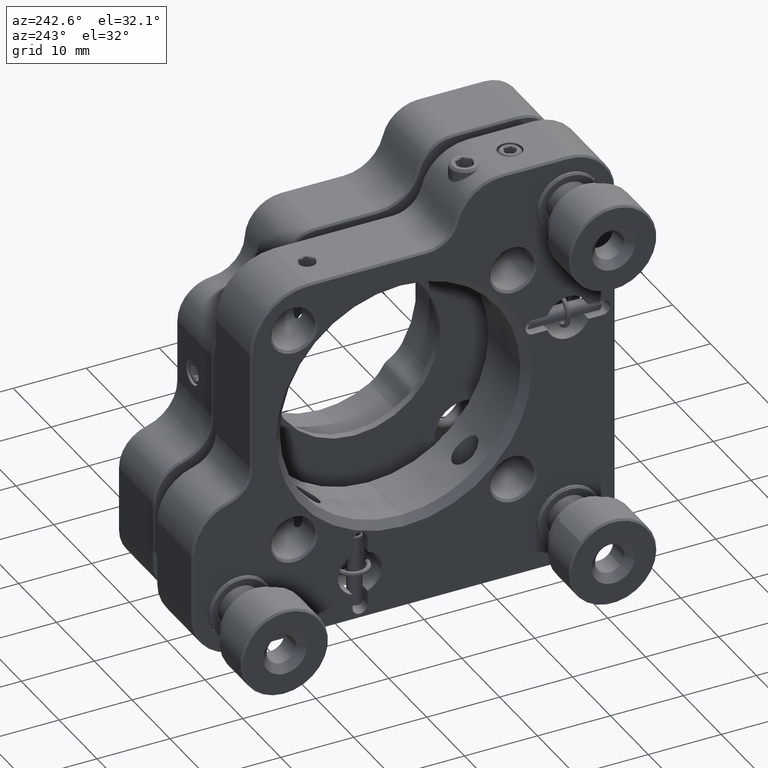
[diagram: clean part render]
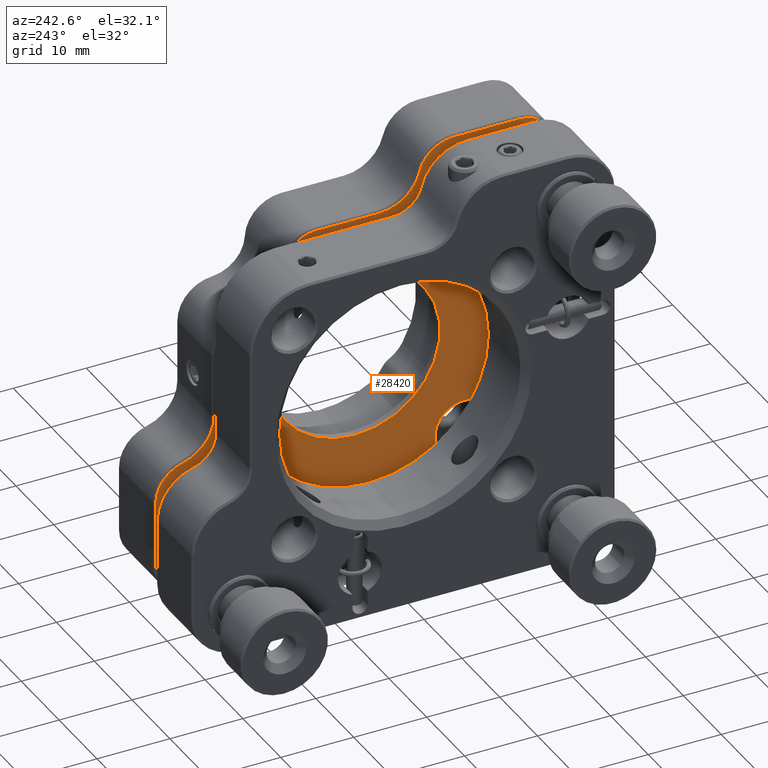
[diagram: same view with one face highlighted and labeled with its STEP entity id]
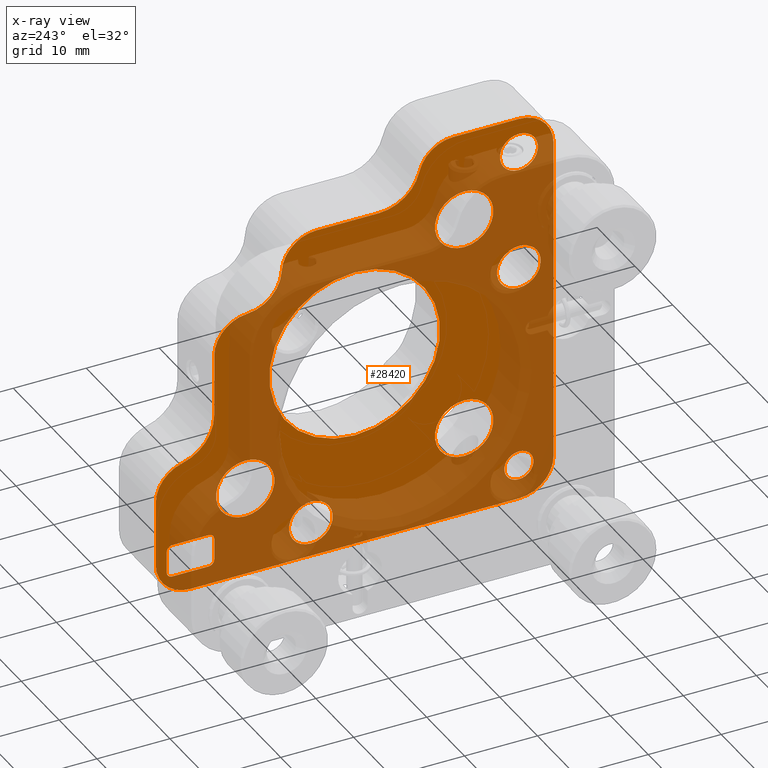
[diagram: x-ray of the same camera — body ghosted, the highlighted face saturated]
A machine part, auxiliary view. The second image highlights one B-rep face of the part: STEP entity #28420.
The next image is the same camera in x-ray: the body ghosted, the highlighted face saturated — about 65% of this face is hidden behind the body in this view.
In plain terms, the highlighted planar face has unit normal (1, 0, 0).
Its self-contained STEP definition (entity closure, byte-faithful):
#60 = VECTOR ( 'NONE', #24103, 1000.000000000000000 ) ;
#331 = EDGE_CURVE ( 'NONE', #20608, #10147, #13475, .T. ) ;
#518 = CARTESIAN_POINT ( 'NONE',  ( -5.080910080472725632, -8.231932511759531224, 74.25000000000001421 ) ) ;
#589 = CARTESIAN_POINT ( 'NONE',  ( -5.080910080472725632, 16.76806748824047233, 51.69803902718557254 ) ) ;
#610 = EDGE_LOOP ( 'NONE', ( #22823, #29587, #20907, #33398, #13126, #10303, #18364, #13042, #26037, #22110, #30973, #29149, #34656, #32153, #36007, #6793 ) ) ;
#685 = DIRECTION ( 'NONE',  ( 0.000000000000000000, 0.000000000000000000, -1.000000000000000000 ) ) ;
#745 = DIRECTION ( 'NONE',  ( 0.000000000000000000, 0.000000000000000000, -1.000000000000000000 ) ) ;
#832 = CIRCLE ( 'NONE', #24382, 2.600000000000004974 ) ;
#1018 = CIRCLE ( 'NONE', #17140, 11.70000000000000284 ) ;
#1032 = VERTEX_POINT ( 'NONE', #32410 ) ;
#1128 = CARTESIAN_POINT ( 'NONE',  ( -5.080910080472725632, 6.768067488240470553, 44.00000000000000711 ) ) ;
#1412 = CARTESIAN_POINT ( 'NONE',  ( -5.080910080472725632, -30.73193251175952767, 74.90000000000000568 ) ) ;
#1494 = LINE ( 'NONE', #2255, #5043 ) ;
#1576 = EDGE_CURVE ( 'NONE', #25722, #5342, #23011, .T. ) ;
#1590 = CIRCLE ( 'NONE', #20149, 4.000000000000003553 ) ;
#1787 = ORIENTED_EDGE ( 'NONE', *, *, #15888, .F. ) ;
#1942 = AXIS2_PLACEMENT_3D ( 'NONE', #32045, #6694, #17988 ) ;
#1951 = AXIS2_PLACEMENT_3D ( 'NONE', #589, #20306, #23154 ) ;
#2074 = VERTEX_POINT ( 'NONE', #12947 ) ;
#2255 = CARTESIAN_POINT ( 'NONE',  ( -5.080910080472725632, -35.48193251175952412, 55.00000000000000711 ) ) ;
#2335 = VERTEX_POINT ( 'NONE', #4575 ) ;
#2491 = ORIENTED_EDGE ( 'NONE', *, *, #1576, .F. ) ;
#2528 = ORIENTED_EDGE ( 'NONE', *, *, #10376, .F. ) ;
#2671 = DIRECTION ( 'NONE',  ( 0.000000000000000000, 0.000000000000000000, -1.000000000000000000 ) ) ;
#2788 = EDGE_CURVE ( 'NONE', #6411, #2074, #21312, .T. ) ;
#2823 = CIRCLE ( 'NONE', #29100, 3.999999999999996447 ) ;
#2888 = AXIS2_PLACEMENT_3D ( 'NONE', #18502, #29464, #32336 ) ;
#2929 = VERTEX_POINT ( 'NONE', #8926 ) ;
#3047 = ORIENTED_EDGE ( 'NONE', *, *, #11907, .F. ) ;
#3092 = CIRCLE ( 'NONE', #8991, 4.749999999999997335 ) ;
#3109 = CIRCLE ( 'NONE', #19122, 3.000000000000002665 ) ;
#3136 = CARTESIAN_POINT ( 'NONE',  ( -5.080910080472725632, 16.74306748824046309, 30.25000000000001066 ) ) ;
#3226 = ORIENTED_EDGE ( 'NONE', *, *, #8254, .F. ) ;
#3410 = CIRCLE ( 'NONE', #1951, 5.749999999999998224 ) ;
#3482 = DIRECTION ( 'NONE',  ( 0.000000000000000000, 0.000000000000000000, -1.000000000000000000 ) ) ;
#3590 = EDGE_CURVE ( 'NONE', #25209, #3851, #28388, .T. ) ;
#3604 = EDGE_CURVE ( 'NONE', #2335, #9929, #35483, .T. ) ;
#3653 = VERTEX_POINT ( 'NONE', #13613 ) ;
#3851 = VERTEX_POINT ( 'NONE', #13987 ) ;
#3964 = CARTESIAN_POINT ( 'NONE',  ( -5.080910080472725632, 17.51806748824046167, 30.25000000000001066 ) ) ;
#4036 = EDGE_CURVE ( 'NONE', #21357, #34257, #1494, .T. ) ;
#4270 = VERTEX_POINT ( 'NONE', #1128 ) ;
#4431 = CIRCLE ( 'NONE', #32702, 2.600000000000004974 ) ;
#4487 = EDGE_CURVE ( 'NONE', #10425, #6411, #13427, .T. ) ;
#4575 = CARTESIAN_POINT ( 'NONE',  ( -5.080910080472725632, 11.79306748824046380, 34.75000000000000711 ) ) ;
#4683 = CARTESIAN_POINT ( 'NONE',  ( -5.080910080472725632, 15.39901986919285903, 46.11339860753633246 ) ) ;
#4759 = LINE ( 'NONE', #518, #17906 ) ;
#4774 = AXIS2_PLACEMENT_3D ( 'NONE', #35640, #12635, #7096 ) ;
#4971 = CARTESIAN_POINT ( 'NONE',  ( -5.080910080472725632, 11.79306748824046380, 31.02500000000000924 ) ) ;
#4998 = EDGE_CURVE ( 'NONE', #19390, #8589, #10311, .T. ) ;
#5007 = EDGE_LOOP ( 'NONE', ( #33493, #2528 ) ) ;
#5022 = DIRECTION ( 'NONE',  ( 0.000000000000000000, 0.000000000000000000, 1.000000000000000000 ) ) ;
#5043 = VECTOR ( 'NONE', #28141, 1000.000000000000000 ) ;
#5050 = DIRECTION ( 'NONE',  ( 0.000000000000000000, 0.000000000000000000, -1.000000000000000000 ) ) ;
#5095 = CARTESIAN_POINT ( 'NONE',  ( -5.080910080472725632, -21.73193251175952767, 77.50000000000001421 ) ) ;
#5253 = ORIENTED_EDGE ( 'NONE', *, *, #14069, .T. ) ;
#5342 = VERTEX_POINT ( 'NONE', #25851 ) ;
#5654 = DIRECTION ( 'NONE',  ( -1.000000000000000000, 0.000000000000000000, 0.000000000000000000 ) ) ;
#5759 = VERTEX_POINT ( 'NONE', #7195 ) ;
#6067 = VERTEX_POINT ( 'NONE', #13051 ) ;
#6076 = VERTEX_POINT ( 'NONE', #32742 ) ;
#6266 = CARTESIAN_POINT ( 'NONE',  ( -5.080910080472725632, 6.768067488240469665, 70.00000000000000000 ) ) ;
#6411 = VERTEX_POINT ( 'NONE', #21789 ) ;
#6515 = DIRECTION ( 'NONE',  ( 0.000000000000000000, 0.000000000000000000, 1.000000000000000000 ) ) ;
#6612 = EDGE_LOOP ( 'NONE', ( #24501, #36402 ) ) ;
#6637 = EDGE_CURVE ( 'NONE', #35864, #10425, #4759, .T. ) ;
#6694 = DIRECTION ( 'NONE',  ( -1.000000000000000000, -0.000000000000000000, -0.000000000000000000 ) ) ;
#6793 = ORIENTED_EDGE ( 'NONE', *, *, #13152, .T. ) ;
#6925 = CARTESIAN_POINT ( 'NONE',  ( -5.080910080472725632, 17.51806748824046167, 30.25000000000001066 ) ) ;
#6994 = DIRECTION ( 'NONE',  ( 0.000000000000000000, 0.000000000000000000, -1.000000000000000000 ) ) ;
#7080 = DIRECTION ( 'NONE',  ( -1.000000000000000000, 0.000000000000000000, 0.000000000000000000 ) ) ;
#7096 = DIRECTION ( 'NONE',  ( 0.000000000000000000, 0.000000000000000000, -1.000000000000000000 ) ) ;
#7195 = CARTESIAN_POINT ( 'NONE',  ( -5.080910080472725632, 11.79306748824046380, 30.25000000000001066 ) ) ;
#7634 = EDGE_CURVE ( 'NONE', #2074, #14821, #3092, .T. ) ;
#7806 = FACE_BOUND ( 'NONE', #25975, .T. ) ;
#7837 = FACE_BOUND ( 'NONE', #10909, .T. ) ;
#7854 = AXIS2_PLACEMENT_3D ( 'NONE', #4971, #21504, #33252 ) ;
#7884 = DIRECTION ( 'NONE',  ( 0.000000000000000000, 0.000000000000000000, -1.000000000000000000 ) ) ;
#8006 = EDGE_LOOP ( 'NONE', ( #35236, #12321 ) ) ;
#8183 = VERTEX_POINT ( 'NONE', #14951 ) ;
#8254 = EDGE_CURVE ( 'NONE', #2335, #8589, #14688, .T. ) ;
#8277 = EDGE_CURVE ( 'NONE', #26258, #35864, #13810, .T. ) ;
#8338 = ORIENTED_EDGE ( 'NONE', *, *, #26434, .T. ) ;
#8589 = VERTEX_POINT ( 'NONE', #12543 ) ;
#8657 = LINE ( 'NONE', #17642, #35058 ) ;
#8730 = CARTESIAN_POINT ( 'NONE',  ( -5.080910080472725632, -23.23193251175952767, 40.00000000000000711 ) ) ;
#8926 = CARTESIAN_POINT ( 'NONE',  ( -5.080910080472722967, -8.231932511759527671, 66.70000000000000284 ) ) ;
#8932 = DIRECTION ( 'NONE',  ( 0.000000000000000000, -1.000000000000000000, -6.308085367188388762E-17 ) ) ;
#8987 = DIRECTION ( 'NONE',  ( 0.000000000000000000, 0.000000000000000000, 1.000000000000000000 ) ) ;
#8991 = AXIS2_PLACEMENT_3D ( 'NONE', #14730, #34666, #745 ) ;
#9068 = DIRECTION ( 'NONE',  ( 0.000000000000000000, 0.000000000000000000, 1.000000000000000000 ) ) ;
#9192 = EDGE_CURVE ( 'NONE', #3851, #25209, #3109, .T. ) ;
#9406 = EDGE_CURVE ( 'NONE', #2929, #9583, #35624, .T. ) ;
#9477 = DIRECTION ( 'NONE',  ( 1.000000000000000000, 0.000000000000000000, 0.000000000000000000 ) ) ;
#9522 = VECTOR ( 'NONE', #17442, 1000.000000000000000 ) ;
#9583 = VERTEX_POINT ( 'NONE', #30415 ) ;
#9698 = LINE ( 'NONE', #6925, #60 ) ;
#9699 = EDGE_LOOP ( 'NONE', ( #31508, #8338 ) ) ;
#9714 = AXIS2_PLACEMENT_3D ( 'NONE', #34470, #24087, #18317 ) ;
#9743 = DIRECTION ( 'NONE',  ( 0.000000000000000000, -1.239088197126290817E-16, -1.000000000000000000 ) ) ;
#9831 = EDGE_CURVE ( 'NONE', #8183, #21357, #14029, .T. ) ;
#9929 = VERTEX_POINT ( 'NONE', #29017 ) ;
#10022 = AXIS2_PLACEMENT_3D ( 'NONE', #12313, #23611, #685 ) ;
#10138 = EDGE_CURVE ( 'NONE', #34257, #6067, #16624, .T. ) ;
#10147 = VERTEX_POINT ( 'NONE', #22437 ) ;
#10280 = CARTESIAN_POINT ( 'NONE',  ( -5.080910080472725632, 6.768067488240469665, 36.00000000000001421 ) ) ;
#10303 = ORIENTED_EDGE ( 'NONE', *, *, #7634, .T. ) ;
#10311 = CIRCLE ( 'NONE', #22436, 0.7749999999999979128 ) ;
#10376 = EDGE_CURVE ( 'NONE', #23721, #13458, #832, .T. ) ;
#10425 = VERTEX_POINT ( 'NONE', #19622 ) ;
#10474 = AXIS2_PLACEMENT_3D ( 'NONE', #16646, #27830, #33542 ) ;
#10498 = CARTESIAN_POINT ( 'NONE',  ( -5.080910080472725632, 19.01806748824047588, 32.50000000000000711 ) ) ;
#10703 = LINE ( 'NONE', #30894, #34487 ) ;
#10727 = EDGE_CURVE ( 'NONE', #16980, #14307, #22763, .T. ) ;
#10909 = EDGE_LOOP ( 'NONE', ( #25054, #2491 ) ) ;
#11037 = DIRECTION ( 'NONE',  ( 0.000000000000000000, 0.000000000000000000, -1.000000000000000000 ) ) ;
#11093 = EDGE_CURVE ( 'NONE', #18815, #20608, #3410, .T. ) ;
#11145 = AXIS2_PLACEMENT_3D ( 'NONE', #21405, #24223, #18219 ) ;
#11218 = AXIS2_PLACEMENT_3D ( 'NONE', #5095, #35815, #7884 ) ;
#11385 = FACE_OUTER_BOUND ( 'NONE', #610, .T. ) ;
#11406 = CARTESIAN_POINT ( 'NONE',  ( -5.080910080472725632, -2.229558574121890846, 32.50000000000001421 ) ) ;
#11513 = CARTESIAN_POINT ( 'NONE',  ( -5.080910080472725632, 19.01806748824047588, 55.00000000000000711 ) ) ;
#11907 = EDGE_CURVE ( 'NONE', #13233, #5759, #14315, .T. ) ;
#12009 = EDGE_CURVE ( 'NONE', #6076, #9929, #19584, .T. ) ;
#12035 = VECTOR ( 'NONE', #12948, 1000.000000000000000 ) ;
#12257 = CARTESIAN_POINT ( 'NONE',  ( -5.080910080472725632, -23.23193251175952767, 70.00000000000000000 ) ) ;
#12313 = CARTESIAN_POINT ( 'NONE',  ( -5.080910080472725632, -30.73193251175952767, 32.50000000000000711 ) ) ;
#12321 = ORIENTED_EDGE ( 'NONE', *, *, #13702, .T. ) ;
#12341 = CIRCLE ( 'NONE', #24884, 3.999999999999996447 ) ;
#12442 = VERTEX_POINT ( 'NONE', #22929 ) ;
#12543 = CARTESIAN_POINT ( 'NONE',  ( -5.080910080472725632, 16.74306748824046309, 34.75000000000000711 ) ) ;
#12614 = DIRECTION ( 'NONE',  ( 1.000000000000000000, 0.000000000000000000, -0.000000000000000000 ) ) ;
#12635 = DIRECTION ( 'NONE',  ( 1.000000000000000000, 0.000000000000000000, 0.000000000000000000 ) ) ;
#12947 = CARTESIAN_POINT ( 'NONE',  ( -5.080910080472725632, 6.511657231830218606, 65.00657895021784327 ) ) ;
#12948 = DIRECTION ( 'NONE',  ( -0.000000000000000000, 1.000000000000000000, -0.000000000000000000 ) ) ;
#12954 = DIRECTION ( 'NONE',  ( -1.000000000000000000, -0.000000000000000000, -0.000000000000000000 ) ) ;
#13009 = VECTOR ( 'NONE', #24153, 1000.000000000000000 ) ;
#13023 = AXIS2_PLACEMENT_3D ( 'NONE', #13586, #14066, #2671 ) ;
#13042 = ORIENTED_EDGE ( 'NONE', *, *, #11093, .T. ) ;
#13051 = CARTESIAN_POINT ( 'NONE',  ( -5.080910080472725632, -30.73193251175952767, 82.25000000000000000 ) ) ;
#13126 = ORIENTED_EDGE ( 'NONE', *, *, #2788, .T. ) ;
#13152 = EDGE_CURVE ( 'NONE', #6067, #12442, #10703, .T. ) ;
#13233 = VERTEX_POINT ( 'NONE', #3136 ) ;
#13274 = EDGE_CURVE ( 'NONE', #1032, #30165, #15099, .T. ) ;
#13318 = CIRCLE ( 'NONE', #7854, 0.7750000000000013545 ) ;
#13333 = DIRECTION ( 'NONE',  ( 0.000000000000000000, 0.000000000000000000, -1.000000000000000000 ) ) ;
#13382 = CIRCLE ( 'NONE', #1942, 4.750000000000000888 ) ;
#13427 = CIRCLE ( 'NONE', #34002, 4.750000000000004441 ) ;
#13458 = VERTEX_POINT ( 'NONE', #27417 ) ;
#13475 = CIRCLE ( 'NONE', #28510, 4.750000000000004441 ) ;
#13482 = DIRECTION ( 'NONE',  ( 0.000000000000000000, 0.000000000000000000, -1.000000000000000000 ) ) ;
#13586 = CARTESIAN_POINT ( 'NONE',  ( -5.080910080472725632, -23.23193251175952767, 40.00000000000000711 ) ) ;
#13613 = CARTESIAN_POINT ( 'NONE',  ( -5.080910080472725632, -23.23193251175952767, 36.00000000000001421 ) ) ;
#13657 = DIRECTION ( 'NONE',  ( 0.000000000000000000, 0.000000000000000000, -1.000000000000000000 ) ) ;
#13702 = EDGE_CURVE ( 'NONE', #4270, #25460, #2823, .T. ) ;
#13810 = CIRCLE ( 'NONE', #11145, 5.749999999999991118 ) ;
#13987 = CARTESIAN_POINT ( 'NONE',  ( -5.080910080472725632, -2.229558574121890846, 35.50000000000001421 ) ) ;
#14012 = DIRECTION ( 'NONE',  ( -1.000000000000000000, 0.000000000000000000, 0.000000000000000000 ) ) ;
#14029 = CIRCLE ( 'NONE', #10022, 4.750000000000000888 ) ;
#14053 = CARTESIAN_POINT ( 'NONE',  ( -5.080910080472725632, -30.73193251175952057, 58.00237393763764260 ) ) ;
#14060 = DIRECTION ( 'NONE',  ( 0.000000000000000000, 1.000000000000000000, 6.308085367188388762E-17 ) ) ;
#14066 = DIRECTION ( 'NONE',  ( 1.000000000000000000, 0.000000000000000000, 0.000000000000000000 ) ) ;
#14069 = EDGE_CURVE ( 'NONE', #14307, #16980, #1590, .T. ) ;
#14177 = EDGE_CURVE ( 'NONE', #21762, #8183, #8657, .T. ) ;
#14307 = VERTEX_POINT ( 'NONE', #30465 ) ;
#14315 = LINE ( 'NONE', #3964, #9522 ) ;
#14501 = DIRECTION ( 'NONE',  ( 0.000000000000000000, 0.000000000000000000, -1.000000000000000000 ) ) ;
#14589 = CARTESIAN_POINT ( 'NONE',  ( -5.080910080472725632, -23.23193251175952767, 70.00000000000000000 ) ) ;
#14688 = LINE ( 'NONE', #18564, #12035 ) ;
#14730 = CARTESIAN_POINT ( 'NONE',  ( -5.080910080472725632, 6.268067488240477658, 60.26282895292478514 ) ) ;
#14821 = VERTEX_POINT ( 'NONE', #29940 ) ;
#14951 = CARTESIAN_POINT ( 'NONE',  ( -5.080910080472725632, -30.73193251175952767, 27.75000000000000711 ) ) ;
#14969 = CIRCLE ( 'NONE', #33951, 0.7750000000000013545 ) ;
#14986 = ORIENTED_EDGE ( 'NONE', *, *, #13274, .F. ) ;
#15099 = CIRCLE ( 'NONE', #9714, 2.000000000000001776 ) ;
#15261 = CARTESIAN_POINT ( 'NONE',  ( -5.080910080472725632, 11.01806748824047766, 55.00000000000000711 ) ) ;
#15299 = FACE_BOUND ( 'NONE', #5007, .T. ) ;
#15461 = CARTESIAN_POINT ( 'NONE',  ( -5.080910080472725632, -35.48193251175952412, 32.50000000000000000 ) ) ;
#15500 = DIRECTION ( 'NONE',  ( 1.000000000000000000, 0.000000000000000000, 0.000000000000000000 ) ) ;
#15565 = EDGE_CURVE ( 'NONE', #9583, #2929, #1018, .T. ) ;
#15762 = FACE_BOUND ( 'NONE', #27829, .T. ) ;
#15830 = DIRECTION ( 'NONE',  ( 0.000000000000000000, 0.000000000000000000, 1.000000000000000000 ) ) ;
#15888 = EDGE_CURVE ( 'NONE', #30165, #1032, #23784, .T. ) ;
#16064 = EDGE_CURVE ( 'NONE', #25460, #4270, #28172, .T. ) ;
#16237 = CARTESIAN_POINT ( 'NONE',  ( -5.080910080472722967, -8.231932511759529447, 55.00000000000000711 ) ) ;
#16343 = EDGE_CURVE ( 'NONE', #13233, #35670, #14969, .T. ) ;
#16350 = AXIS2_PLACEMENT_3D ( 'NONE', #24352, #12954, #13333 ) ;
#16363 = DIRECTION ( 'NONE',  ( -1.000000000000000000, -0.000000000000000000, -0.000000000000000000 ) ) ;
#16517 = CARTESIAN_POINT ( 'NONE',  ( -5.080910080472725632, -35.48193251175952412, 77.50000000000001421 ) ) ;
#16624 = CIRCLE ( 'NONE', #36397, 4.750000000000004441 ) ;
#16646 = CARTESIAN_POINT ( 'NONE',  ( -5.080910080472725632, -30.73193251175952057, 61.00237393763764970 ) ) ;
#16980 = VERTEX_POINT ( 'NONE', #27012 ) ;
#17074 = CARTESIAN_POINT ( 'NONE',  ( -5.080910080472725632, 6.768067488240469665, 40.00000000000000711 ) ) ;
#17140 = AXIS2_PLACEMENT_3D ( 'NONE', #16237, #16363, #13657 ) ;
#17295 = CARTESIAN_POINT ( 'NONE',  ( -5.080910080472725632, 14.26806748824047588, 41.50000000000000711 ) ) ;
#17442 = DIRECTION ( 'NONE',  ( 0.000000000000000000, -1.000000000000000000, 0.000000000000000000 ) ) ;
#17642 = CARTESIAN_POINT ( 'NONE',  ( -5.080910080472725632, -8.231932511759527671, 27.75000000000000711 ) ) ;
#17859 = CARTESIAN_POINT ( 'NONE',  ( -5.080910080472725632, 14.26806748824047588, 27.75000000000000711 ) ) ;
#17906 = VECTOR ( 'NONE', #33962, 1000.000000000000000 ) ;
#17988 = DIRECTION ( 'NONE',  ( 0.000000000000000000, 0.000000000000000000, -1.000000000000000000 ) ) ;
#18150 = ORIENTED_EDGE ( 'NONE', *, *, #30696, .T. ) ;
#18158 = AXIS2_PLACEMENT_3D ( 'NONE', #20702, #23556, #32443 ) ;
#18219 = DIRECTION ( 'NONE',  ( 0.000000000000000000, 0.000000000000000000, -1.000000000000000000 ) ) ;
#18317 = DIRECTION ( 'NONE',  ( 0.000000000000000000, 0.000000000000000000, 1.000000000000000000 ) ) ;
#18364 = ORIENTED_EDGE ( 'NONE', *, *, #19657, .T. ) ;
#18502 = CARTESIAN_POINT ( 'NONE',  ( -5.080910080472725632, -2.229558574121890846, 32.50000000000001421 ) ) ;
#18564 = CARTESIAN_POINT ( 'NONE',  ( -5.080910080472725632, 17.51806748824046167, 34.75000000000000711 ) ) ;
#18678 = AXIS2_PLACEMENT_3D ( 'NONE', #6266, #23193, #28958 ) ;
#18765 = EDGE_CURVE ( 'NONE', #5342, #25722, #26054, .T. ) ;
#18815 = VERTEX_POINT ( 'NONE', #19444 ) ;
#18885 = EDGE_CURVE ( 'NONE', #19390, #35670, #9698, .T. ) ;
#18891 = CARTESIAN_POINT ( 'NONE',  ( -5.080910080472725632, -30.73193251175952767, 77.50000000000001421 ) ) ;
#19002 = DIRECTION ( 'NONE',  ( -1.000000000000000000, -0.000000000000000000, -0.000000000000000000 ) ) ;
#19122 = AXIS2_PLACEMENT_3D ( 'NONE', #11406, #5654, #5022 ) ;
#19234 = CARTESIAN_POINT ( 'NONE',  ( -5.080910080472725632, 16.74306748824046309, 31.02500000000000924 ) ) ;
#19390 = VERTEX_POINT ( 'NONE', #23111 ) ;
#19444 = CARTESIAN_POINT ( 'NONE',  ( -5.080910080472725632, 11.01806748824047766, 51.69803902718557254 ) ) ;
#19584 = LINE ( 'NONE', #23687, #13009 ) ;
#19622 = CARTESIAN_POINT ( 'NONE',  ( -5.080910080472725632, -2.969103558834755408, 74.25000000000001421 ) ) ;
#19657 = EDGE_CURVE ( 'NONE', #14821, #18815, #21455, .T. ) ;
#19928 = CIRCLE ( 'NONE', #13023, 3.999999999999996447 ) ;
#20061 = EDGE_CURVE ( 'NONE', #12442, #26258, #20542, .T. ) ;
#20149 = AXIS2_PLACEMENT_3D ( 'NONE', #14589, #31417, #9068 ) ;
#20306 = DIRECTION ( 'NONE',  ( 1.000000000000000000, 0.000000000000000000, 0.000000000000000000 ) ) ;
#20542 = CIRCLE ( 'NONE', #11218, 4.750000000000004441 ) ;
#20608 = VERTEX_POINT ( 'NONE', #4683 ) ;
#20702 = CARTESIAN_POINT ( 'NONE',  ( -5.080910080472725632, -30.73193251175952057, 61.00237393763764970 ) ) ;
#20907 = ORIENTED_EDGE ( 'NONE', *, *, #6637, .T. ) ;
#20952 = CARTESIAN_POINT ( 'NONE',  ( -5.080910080472725632, -30.73193251175952767, 77.50000000000001421 ) ) ;
#21312 = CIRCLE ( 'NONE', #18678, 5.000000000000004441 ) ;
#21357 = VERTEX_POINT ( 'NONE', #15461 ) ;
#21405 = CARTESIAN_POINT ( 'NONE',  ( -5.080910080472725632, -11.53389348457395513, 80.00000000000000000 ) ) ;
#21455 = LINE ( 'NONE', #15261, #28076 ) ;
#21504 = DIRECTION ( 'NONE',  ( 1.000000000000000000, 0.000000000000000000, 0.000000000000000000 ) ) ;
#21762 = VERTEX_POINT ( 'NONE', #17859 ) ;
#21789 = CARTESIAN_POINT ( 'NONE',  ( -5.080910080472725632, 1.774646438458302278, 69.74358974358975161 ) ) ;
#21800 = EDGE_LOOP ( 'NONE', ( #5253, #23756 ) ) ;
#21904 = FACE_BOUND ( 'NONE', #6612, .T. ) ;
#22047 = ORIENTED_EDGE ( 'NONE', *, *, #15565, .F. ) ;
#22110 = ORIENTED_EDGE ( 'NONE', *, *, #25118, .T. ) ;
#22436 = AXIS2_PLACEMENT_3D ( 'NONE', #28614, #9477, #3482 ) ;
#22437 = CARTESIAN_POINT ( 'NONE',  ( -5.080910080472725632, 19.01806748824047588, 41.50000000000000000 ) ) ;
#22754 = FACE_BOUND ( 'NONE', #8006, .T. ) ;
#22763 = CIRCLE ( 'NONE', #36445, 4.000000000000003553 ) ;
#22787 = FACE_BOUND ( 'NONE', #27827, .T. ) ;
#22823 = ORIENTED_EDGE ( 'NONE', *, *, #20061, .T. ) ;
#22929 = CARTESIAN_POINT ( 'NONE',  ( -5.080910080472725632, -21.73193251175952767, 82.25000000000000000 ) ) ;
#22955 = DIRECTION ( 'NONE',  ( 0.000000000000000000, -7.304098846218128751E-16, -1.000000000000000000 ) ) ;
#23011 = CIRCLE ( 'NONE', #18158, 3.000000000000002665 ) ;
#23111 = CARTESIAN_POINT ( 'NONE',  ( -5.080910080472725632, 17.51806748824046167, 33.97500000000000853 ) ) ;
#23154 = DIRECTION ( 'NONE',  ( 0.000000000000000000, 0.000000000000000000, -1.000000000000000000 ) ) ;
#23193 = DIRECTION ( 'NONE',  ( 1.000000000000000000, 0.000000000000000000, 0.000000000000000000 ) ) ;
#23321 = CARTESIAN_POINT ( 'NONE',  ( -5.080910080472725632, -30.73193251175953478, 32.50000000000001421 ) ) ;
#23408 = ORIENTED_EDGE ( 'NONE', *, *, #3604, .T. ) ;
#23556 = DIRECTION ( 'NONE',  ( -1.000000000000000000, 0.000000000000000000, 0.000000000000000000 ) ) ;
#23611 = DIRECTION ( 'NONE',  ( -1.000000000000000000, -0.000000000000000000, -0.000000000000000000 ) ) ;
#23681 = CARTESIAN_POINT ( 'NONE',  ( -5.080910080472725632, 6.768067488240469665, 40.00000000000000711 ) ) ;
#23687 = CARTESIAN_POINT ( 'NONE',  ( -5.080910080472725632, 11.01806748824046345, 30.25000000000001066 ) ) ;
#23721 = VERTEX_POINT ( 'NONE', #1412 ) ;
#23756 = ORIENTED_EDGE ( 'NONE', *, *, #10727, .T. ) ;
#23784 = CIRCLE ( 'NONE', #25886, 2.000000000000001776 ) ;
#23818 = PLANE ( 'NONE',  #24242 ) ;
#24087 = DIRECTION ( 'NONE',  ( -1.000000000000000000, 0.000000000000000000, 0.000000000000000000 ) ) ;
#24103 = DIRECTION ( 'NONE',  ( -0.000000000000000000, -0.000000000000000000, -1.000000000000000000 ) ) ;
#24153 = DIRECTION ( 'NONE',  ( 0.000000000000000000, 0.000000000000000000, 1.000000000000000000 ) ) ;
#24157 = ORIENTED_EDGE ( 'NONE', *, *, #12009, .F. ) ;
#24223 = DIRECTION ( 'NONE',  ( 1.000000000000000000, 0.000000000000000000, 0.000000000000000000 ) ) ;
#24242 = AXIS2_PLACEMENT_3D ( 'NONE', #26542, #15500, #6994 ) ;
#24352 = CARTESIAN_POINT ( 'NONE',  ( -5.080910080472722967, -8.231932511759529447, 55.00000000000000711 ) ) ;
#24382 = AXIS2_PLACEMENT_3D ( 'NONE', #18891, #32836, #27262 ) ;
#24501 = ORIENTED_EDGE ( 'NONE', *, *, #9192, .F. ) ;
#24734 = DIRECTION ( 'NONE',  ( -1.000000000000000000, -0.000000000000000000, -0.000000000000000000 ) ) ;
#24875 = CARTESIAN_POINT ( 'NONE',  ( -5.080910080472725632, -30.73193251175953478, 34.50000000000001421 ) ) ;
#24884 = AXIS2_PLACEMENT_3D ( 'NONE', #8730, #28602, #14501 ) ;
#25054 = ORIENTED_EDGE ( 'NONE', *, *, #18765, .F. ) ;
#25118 = EDGE_CURVE ( 'NONE', #10147, #29320, #32255, .T. ) ;
#25209 = VERTEX_POINT ( 'NONE', #31412 ) ;
#25460 = VERTEX_POINT ( 'NONE', #10280 ) ;
#25618 = VECTOR ( 'NONE', #11037, 1000.000000000000000 ) ;
#25694 = CARTESIAN_POINT ( 'NONE',  ( -5.080910080472725632, -11.53389348457395513, 74.25000000000001421 ) ) ;
#25722 = VERTEX_POINT ( 'NONE', #14053 ) ;
#25799 = DIRECTION ( 'NONE',  ( 1.000000000000000000, 0.000000000000000000, -0.000000000000000000 ) ) ;
#25851 = CARTESIAN_POINT ( 'NONE',  ( -5.080910080472725632, -30.73193251175952057, 64.00237393763764260 ) ) ;
#25886 = AXIS2_PLACEMENT_3D ( 'NONE', #23321, #14012, #6515 ) ;
#25975 = EDGE_LOOP ( 'NONE', ( #1787, #14986 ) ) ;
#26037 = ORIENTED_EDGE ( 'NONE', *, *, #331, .T. ) ;
#26054 = CIRCLE ( 'NONE', #10474, 3.000000000000002665 ) ;
#26112 = CARTESIAN_POINT ( 'NONE',  ( -5.080910080472725632, 17.51806748824046167, 31.02500000000000924 ) ) ;
#26258 = VERTEX_POINT ( 'NONE', #27888 ) ;
#26434 = EDGE_CURVE ( 'NONE', #36275, #3653, #12341, .T. ) ;
#26503 = DIRECTION ( 'NONE',  ( 0.000000000000000000, 0.000000000000000000, 1.000000000000000000 ) ) ;
#26542 = CARTESIAN_POINT ( 'NONE',  ( -5.080910080472725632, -8.231932511759529447, 55.00000000000000711 ) ) ;
#26573 = AXIS2_PLACEMENT_3D ( 'NONE', #23681, #29580, #29455 ) ;
#27012 = CARTESIAN_POINT ( 'NONE',  ( -5.080910080472725632, -23.23193251175952767, 74.00000000000001421 ) ) ;
#27262 = DIRECTION ( 'NONE',  ( 0.000000000000000000, 0.000000000000000000, 1.000000000000000000 ) ) ;
#27417 = CARTESIAN_POINT ( 'NONE',  ( -5.080910080472725632, -30.73193251175952767, 80.10000000000002274 ) ) ;
#27646 = CARTESIAN_POINT ( 'NONE',  ( -5.080910080472725632, -23.23193251175952767, 44.00000000000000711 ) ) ;
#27740 = EDGE_CURVE ( 'NONE', #13458, #23721, #4431, .T. ) ;
#27827 = EDGE_LOOP ( 'NONE', ( #29341, #30102, #3226, #23408, #24157, #18150, #3047, #35437 ) ) ;
#27829 = EDGE_LOOP ( 'NONE', ( #22047, #29964 ) ) ;
#27830 = DIRECTION ( 'NONE',  ( -1.000000000000000000, 0.000000000000000000, 0.000000000000000000 ) ) ;
#27888 = CARTESIAN_POINT ( 'NONE',  ( -5.080910080472725632, -17.11853390422319521, 78.63095238095237960 ) ) ;
#27966 = DIRECTION ( 'NONE',  ( 1.000000000000000000, 0.000000000000000000, 0.000000000000000000 ) ) ;
#27970 = DIRECTION ( 'NONE',  ( 0.000000000000000000, 0.000000000000000000, -1.000000000000000000 ) ) ;
#28076 = VECTOR ( 'NONE', #9743, 1000.000000000000000 ) ;
#28093 = CARTESIAN_POINT ( 'NONE',  ( -5.080910080472725632, -30.73193251175952767, 77.50000000000001421 ) ) ;
#28141 = DIRECTION ( 'NONE',  ( 0.000000000000000000, -0.000000000000000000, 1.000000000000000000 ) ) ;
#28172 = CIRCLE ( 'NONE', #26573, 3.999999999999996447 ) ;
#28377 = DIRECTION ( 'NONE',  ( -1.000000000000000000, -0.000000000000000000, -0.000000000000000000 ) ) ;
#28388 = CIRCLE ( 'NONE', #2888, 3.000000000000002665 ) ;
#28420 = ADVANCED_FACE ( 'NONE', ( #11385, #21904, #7837, #22787, #7806, #15299, #22754, #34690, #36431, #15762 ), #23818, .F. ) ;
#28510 = AXIS2_PLACEMENT_3D ( 'NONE', #17295, #28377, #22955 ) ;
#28602 = DIRECTION ( 'NONE',  ( 1.000000000000000000, 0.000000000000000000, 0.000000000000000000 ) ) ;
#28614 = CARTESIAN_POINT ( 'NONE',  ( -5.080910080472725632, 16.74306748824046309, 33.97500000000000853 ) ) ;
#28958 = DIRECTION ( 'NONE',  ( 0.000000000000000000, 0.000000000000000000, -1.000000000000000000 ) ) ;
#29017 = CARTESIAN_POINT ( 'NONE',  ( -5.080910080472725632, 11.01806748824046345, 33.97500000000000853 ) ) ;
#29100 = AXIS2_PLACEMENT_3D ( 'NONE', #17074, #25799, #8987 ) ;
#29149 = ORIENTED_EDGE ( 'NONE', *, *, #14177, .T. ) ;
#29320 = VERTEX_POINT ( 'NONE', #10498 ) ;
#29341 = ORIENTED_EDGE ( 'NONE', *, *, #18885, .F. ) ;
#29455 = DIRECTION ( 'NONE',  ( 0.000000000000000000, 0.000000000000000000, 1.000000000000000000 ) ) ;
#29464 = DIRECTION ( 'NONE',  ( -1.000000000000000000, 0.000000000000000000, 0.000000000000000000 ) ) ;
#29580 = DIRECTION ( 'NONE',  ( 1.000000000000000000, 0.000000000000000000, -0.000000000000000000 ) ) ;
#29587 = ORIENTED_EDGE ( 'NONE', *, *, #8277, .T. ) ;
#29940 = CARTESIAN_POINT ( 'NONE',  ( -5.080910080472725632, 11.01806748824047766, 60.26282895292478514 ) ) ;
#29964 = ORIENTED_EDGE ( 'NONE', *, *, #9406, .F. ) ;
#30102 = ORIENTED_EDGE ( 'NONE', *, *, #4998, .T. ) ;
#30165 = VERTEX_POINT ( 'NONE', #24875 ) ;
#30394 = EDGE_CURVE ( 'NONE', #3653, #36275, #19928, .T. ) ;
#30415 = CARTESIAN_POINT ( 'NONE',  ( -5.080910080472722967, -8.231932511759529447, 43.30000000000000426 ) ) ;
#30465 = CARTESIAN_POINT ( 'NONE',  ( -5.080910080472725632, -23.23193251175952767, 66.00000000000000000 ) ) ;
#30696 = EDGE_CURVE ( 'NONE', #6076, #5759, #13318, .T. ) ;
#30894 = CARTESIAN_POINT ( 'NONE',  ( -5.080910080472725632, -8.231932511759531224, 82.25000000000000000 ) ) ;
#30973 = ORIENTED_EDGE ( 'NONE', *, *, #32899, .T. ) ;
#31412 = CARTESIAN_POINT ( 'NONE',  ( -5.080910080472725632, -2.229558574121890846, 29.50000000000000711 ) ) ;
#31417 = DIRECTION ( 'NONE',  ( 1.000000000000000000, 0.000000000000000000, -0.000000000000000000 ) ) ;
#31508 = ORIENTED_EDGE ( 'NONE', *, *, #30394, .T. ) ;
#32045 = CARTESIAN_POINT ( 'NONE',  ( -5.080910080472725632, 14.26806748824047588, 32.50000000000000711 ) ) ;
#32153 = ORIENTED_EDGE ( 'NONE', *, *, #4036, .T. ) ;
#32255 = LINE ( 'NONE', #11513, #25618 ) ;
#32336 = DIRECTION ( 'NONE',  ( 0.000000000000000000, 0.000000000000000000, 1.000000000000000000 ) ) ;
#32410 = CARTESIAN_POINT ( 'NONE',  ( -5.080910080472725632, -30.73193251175953478, 30.50000000000001776 ) ) ;
#32443 = DIRECTION ( 'NONE',  ( 0.000000000000000000, 0.000000000000000000, 1.000000000000000000 ) ) ;
#32702 = AXIS2_PLACEMENT_3D ( 'NONE', #20952, #7080, #15830 ) ;
#32742 = CARTESIAN_POINT ( 'NONE',  ( -5.080910080472725632, 11.01806748824046345, 31.02500000000000924 ) ) ;
#32836 = DIRECTION ( 'NONE',  ( -1.000000000000000000, 0.000000000000000000, 0.000000000000000000 ) ) ;
#32899 = EDGE_CURVE ( 'NONE', #29320, #21762, #13382, .T. ) ;
#33252 = DIRECTION ( 'NONE',  ( 0.000000000000000000, 0.000000000000000000, -1.000000000000000000 ) ) ;
#33398 = ORIENTED_EDGE ( 'NONE', *, *, #4487, .T. ) ;
#33493 = ORIENTED_EDGE ( 'NONE', *, *, #27740, .F. ) ;
#33542 = DIRECTION ( 'NONE',  ( 0.000000000000000000, 0.000000000000000000, 1.000000000000000000 ) ) ;
#33951 = AXIS2_PLACEMENT_3D ( 'NONE', #19234, #27966, #13482 ) ;
#33962 = DIRECTION ( 'NONE',  ( 0.000000000000000000, 1.000000000000000000, 1.239088197126290817E-16 ) ) ;
#34002 = AXIS2_PLACEMENT_3D ( 'NONE', #35533, #19002, #5050 ) ;
#34257 = VERTEX_POINT ( 'NONE', #16517 ) ;
#34470 = CARTESIAN_POINT ( 'NONE',  ( -5.080910080472725632, -30.73193251175953478, 32.50000000000001421 ) ) ;
#34487 = VECTOR ( 'NONE', #14060, 1000.000000000000000 ) ;
#34656 = ORIENTED_EDGE ( 'NONE', *, *, #9831, .T. ) ;
#34666 = DIRECTION ( 'NONE',  ( -1.000000000000000000, -0.000000000000000000, -0.000000000000000000 ) ) ;
#34690 = FACE_BOUND ( 'NONE', #9699, .T. ) ;
#35058 = VECTOR ( 'NONE', #8932, 1000.000000000000000 ) ;
#35236 = ORIENTED_EDGE ( 'NONE', *, *, #16064, .T. ) ;
#35437 = ORIENTED_EDGE ( 'NONE', *, *, #16343, .T. ) ;
#35483 = CIRCLE ( 'NONE', #4774, 0.7749999999999979128 ) ;
#35533 = CARTESIAN_POINT ( 'NONE',  ( -5.080910080472725632, -2.969103558834755408, 69.50000000000000000 ) ) ;
#35624 = CIRCLE ( 'NONE', #16350, 11.70000000000000284 ) ;
#35640 = CARTESIAN_POINT ( 'NONE',  ( -5.080910080472725632, 11.79306748824046380, 33.97500000000000853 ) ) ;
#35670 = VERTEX_POINT ( 'NONE', #26112 ) ;
#35815 = DIRECTION ( 'NONE',  ( -1.000000000000000000, -0.000000000000000000, -0.000000000000000000 ) ) ;
#35864 = VERTEX_POINT ( 'NONE', #25694 ) ;
#36007 = ORIENTED_EDGE ( 'NONE', *, *, #10138, .T. ) ;
#36275 = VERTEX_POINT ( 'NONE', #27646 ) ;
#36397 = AXIS2_PLACEMENT_3D ( 'NONE', #28093, #24734, #27970 ) ;
#36402 = ORIENTED_EDGE ( 'NONE', *, *, #3590, .F. ) ;
#36431 = FACE_BOUND ( 'NONE', #21800, .T. ) ;
#36445 = AXIS2_PLACEMENT_3D ( 'NONE', #12257, #12614, #26503 ) ;